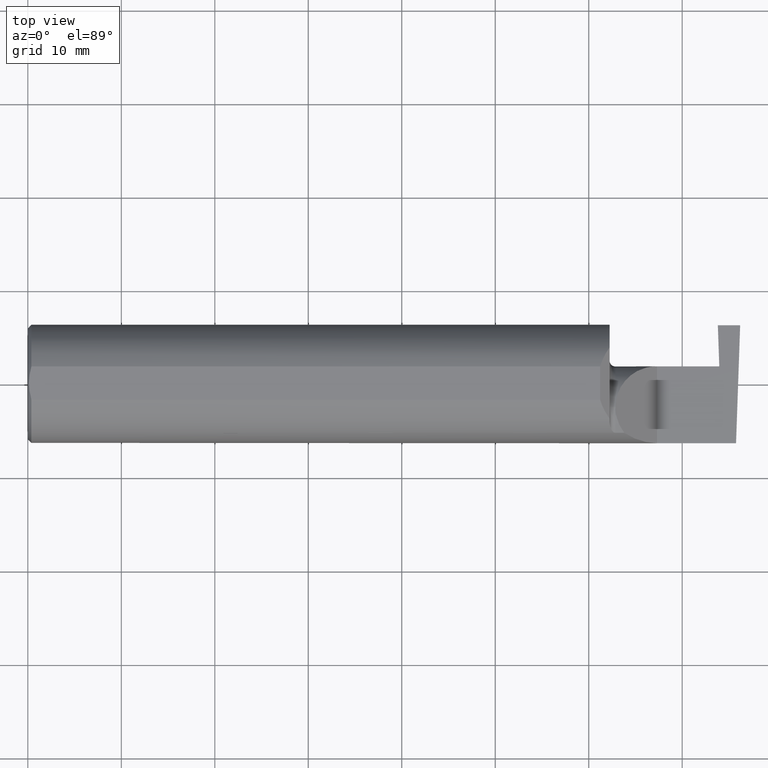
[diagram: clean part render]
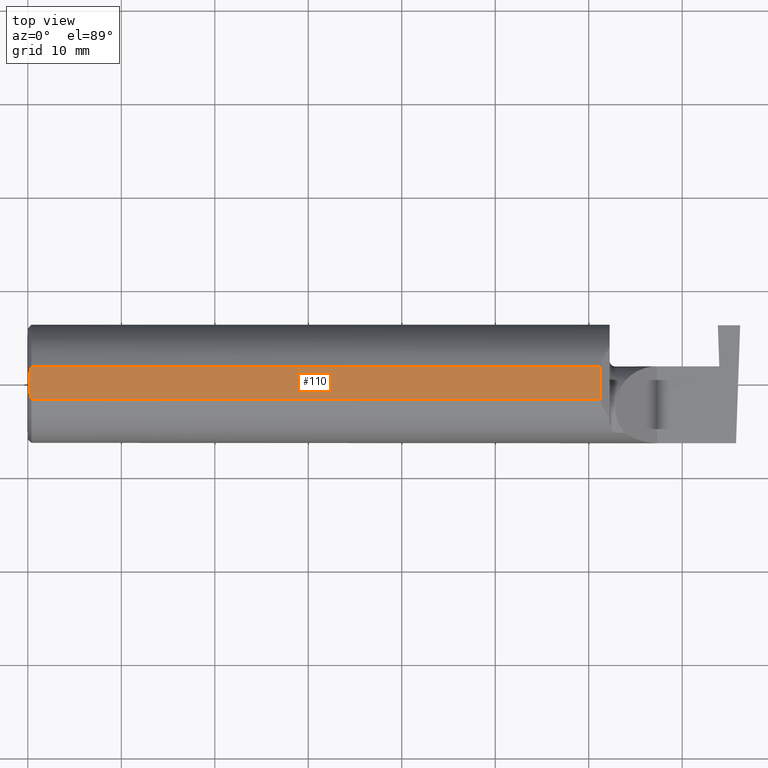
[diagram: same view with one face highlighted and labeled with its STEP entity id]
A machine part, top view. The second image highlights one B-rep face of the part: STEP entity #110.
In plain terms, the highlighted planar face has unit normal (0, -0, 1).
Its self-contained STEP definition (entity closure, byte-faithful):
#1 = CARTESIAN_POINT ( 'NONE',  ( 0.01499999999999998036, 0.06997856814768359246, 0.2398500000000000076 ) ) ;
#14 = LINE ( 'NONE', #272, #326 ) ;
#18 = CARTESIAN_POINT ( 'NONE',  ( 2.410150000000002013, 0.06997856814768359246, 0.2398500000000000076 ) ) ;
#56 = ORIENTED_EDGE ( 'NONE', *, *, #796, .T. ) ;
#57 = EDGE_CURVE ( 'NONE', #318, #558, #600, .T. ) ;
#59 = CARTESIAN_POINT ( 'NONE',  ( 0.01180609504125294286, -0.05857511741890332468, 0.2398500000000000354 ) ) ;
#77 = DIRECTION ( 'NONE',  ( 0.000000000000000000, -0.000000000000000000, 1.000000000000000000 ) ) ;
#110 = ADVANCED_FACE ( 'NONE', ( #648 ), #136, .T. ) ;
#136 = PLANE ( 'NONE',  #484 ) ;
#172 = EDGE_CURVE ( 'NONE', #413, #728, #672, .T. ) ;
#191 = CARTESIAN_POINT ( 'NONE',  ( 0.004999999999999471013, 5.665694022114171174E-17, 0.2398500000000000076 ) ) ;
#196 = ORIENTED_EDGE ( 'NONE', *, *, #551, .F. ) ;
#213 = DIRECTION ( 'NONE',  ( 0.000000000000000000, -1.000000000000000000, 0.000000000000000000 ) ) ;
#214 = DIRECTION ( 'NONE',  ( 1.000000000000000000, 0.000000000000000000, 0.000000000000000000 ) ) ;
#233 = DIRECTION ( 'NONE',  ( -1.000000000000000000, -0.000000000000000000, -0.000000000000000000 ) ) ;
#266 = DIRECTION ( 'NONE',  ( 1.000000000000000000, 0.000000000000000000, -0.000000000000000000 ) ) ;
#268 = EDGE_CURVE ( 'NONE', #728, #723, #628, .T. ) ;
#272 = CARTESIAN_POINT ( 'NONE',  ( 2.410150000000002013, -0.2498499999999999888, 0.2398500000000000076 ) ) ;
#308 = CARTESIAN_POINT ( 'NONE',  ( 0.004999999999999748569, 0.01185123536186986730, 0.2398500000000000354 ) ) ;
#318 = VERTEX_POINT ( 'NONE', #700 ) ;
#324 = CARTESIAN_POINT ( 'NONE',  ( 0.004999999999999471013, 5.665694022114171174E-17, 0.2398500000000000076 ) ) ;
#326 = VECTOR ( 'NONE', #213, 39.37007874015748143 ) ;
#371 = CARTESIAN_POINT ( 'NONE',  ( 0.004999999999999737293, -0.01183939972798750233, 0.2398500000000000631 ) ) ;
#382 = CARTESIAN_POINT ( 'NONE',  ( 0.009274236576542584445, -0.04692405468904851940, 0.2398500000000000076 ) ) ;
#413 = VERTEX_POINT ( 'NONE', #18 ) ;
#435 = ORIENTED_EDGE ( 'NONE', *, *, #172, .T. ) ;
#443 = CARTESIAN_POINT ( 'NONE',  ( 0.005880636388018714231, -0.02358947477502553597, 0.2398500000000000354 ) ) ;
#461 = CARTESIAN_POINT ( 'NONE',  ( 0.000000000000000000, -0.06997856814768359246, 0.2398500000000000076 ) ) ;
#466 = ORIENTED_EDGE ( 'NONE', *, *, #57, .T. ) ;
#484 = AXIS2_PLACEMENT_3D ( 'NONE', #661, #77, #266 ) ;
#498 = CARTESIAN_POINT ( 'NONE',  ( 0.01499999999999999944, -0.06997856814768359246, 0.2398500000000000076 ) ) ;
#506 = CARTESIAN_POINT ( 'NONE',  ( 0.009312860630924749139, 0.04712480857212033442, 0.2398500000000000354 ) ) ;
#513 = CARTESIAN_POINT ( 'NONE',  ( 0.005899890343961325216, 0.02378560009989248020, 0.2398500000000000076 ) ) ;
#514 = ORIENTED_EDGE ( 'NONE', *, *, #268, .T. ) ;
#551 = EDGE_CURVE ( 'NONE', #413, #558, #14, .T. ) ;
#558 = VERTEX_POINT ( 'NONE', #774 ) ;
#600 = LINE ( 'NONE', #461, #749 ) ;
#625 = CARTESIAN_POINT ( 'NONE',  ( 0.01181966702888962925, 0.05862357455657477012, 0.2398500000000000631 ) ) ;
#628 = B_SPLINE_CURVE_WITH_KNOTS ( 'NONE', 3,
 ( #686, #625, #506, #513, #308, #324 ),
 .UNSPECIFIED., .F., .F.,
 ( 4, 2, 4 ),
 ( 0.006064768674679246394, 0.006954995897674293680, 0.007845223120669340966 ),
 .UNSPECIFIED. ) ;
#635 = EDGE_LOOP ( 'NONE', ( #196, #435, #514, #56, #466 ) ) ;
#648 = FACE_OUTER_BOUND ( 'NONE', #635, .T. ) ;
#661 = CARTESIAN_POINT ( 'NONE',  ( 3.000000000000000444, -0.2498499999999999888, 0.2398500000000000076 ) ) ;
#669 = CARTESIAN_POINT ( 'NONE',  ( 0.000000000000000000, 0.06997856814768359246, 0.2398500000000000076 ) ) ;
#672 = LINE ( 'NONE', #669, #733 ) ;
#686 = CARTESIAN_POINT ( 'NONE',  ( 0.01499999999999998036, 0.06997856814768359246, 0.2398500000000000076 ) ) ;
#700 = CARTESIAN_POINT ( 'NONE',  ( 0.01499999999999999944, -0.06997856814768359246, 0.2398500000000000076 ) ) ;
#723 = VERTEX_POINT ( 'NONE', #191 ) ;
#725 = B_SPLINE_CURVE_WITH_KNOTS ( 'NONE', 3,
 ( #752, #371, #443, #382, #59, #498 ),
 .UNSPECIFIED., .F., .F.,
 ( 4, 2, 4 ),
 ( 0.007845223120669340966, 0.008734561288375079086, 0.009623899456080817205 ),
 .UNSPECIFIED. ) ;
#728 = VERTEX_POINT ( 'NONE', #1 ) ;
#733 = VECTOR ( 'NONE', #233, 39.37007874015748143 ) ;
#749 = VECTOR ( 'NONE', #214, 39.37007874015748143 ) ;
#752 = CARTESIAN_POINT ( 'NONE',  ( 0.004999999999999471013, 5.665694022114171174E-17, 0.2398500000000000076 ) ) ;
#774 = CARTESIAN_POINT ( 'NONE',  ( 2.410150000000002013, -0.06997856814768374512, 0.2398500000000000076 ) ) ;
#796 = EDGE_CURVE ( 'NONE', #723, #318, #725, .T. ) ;